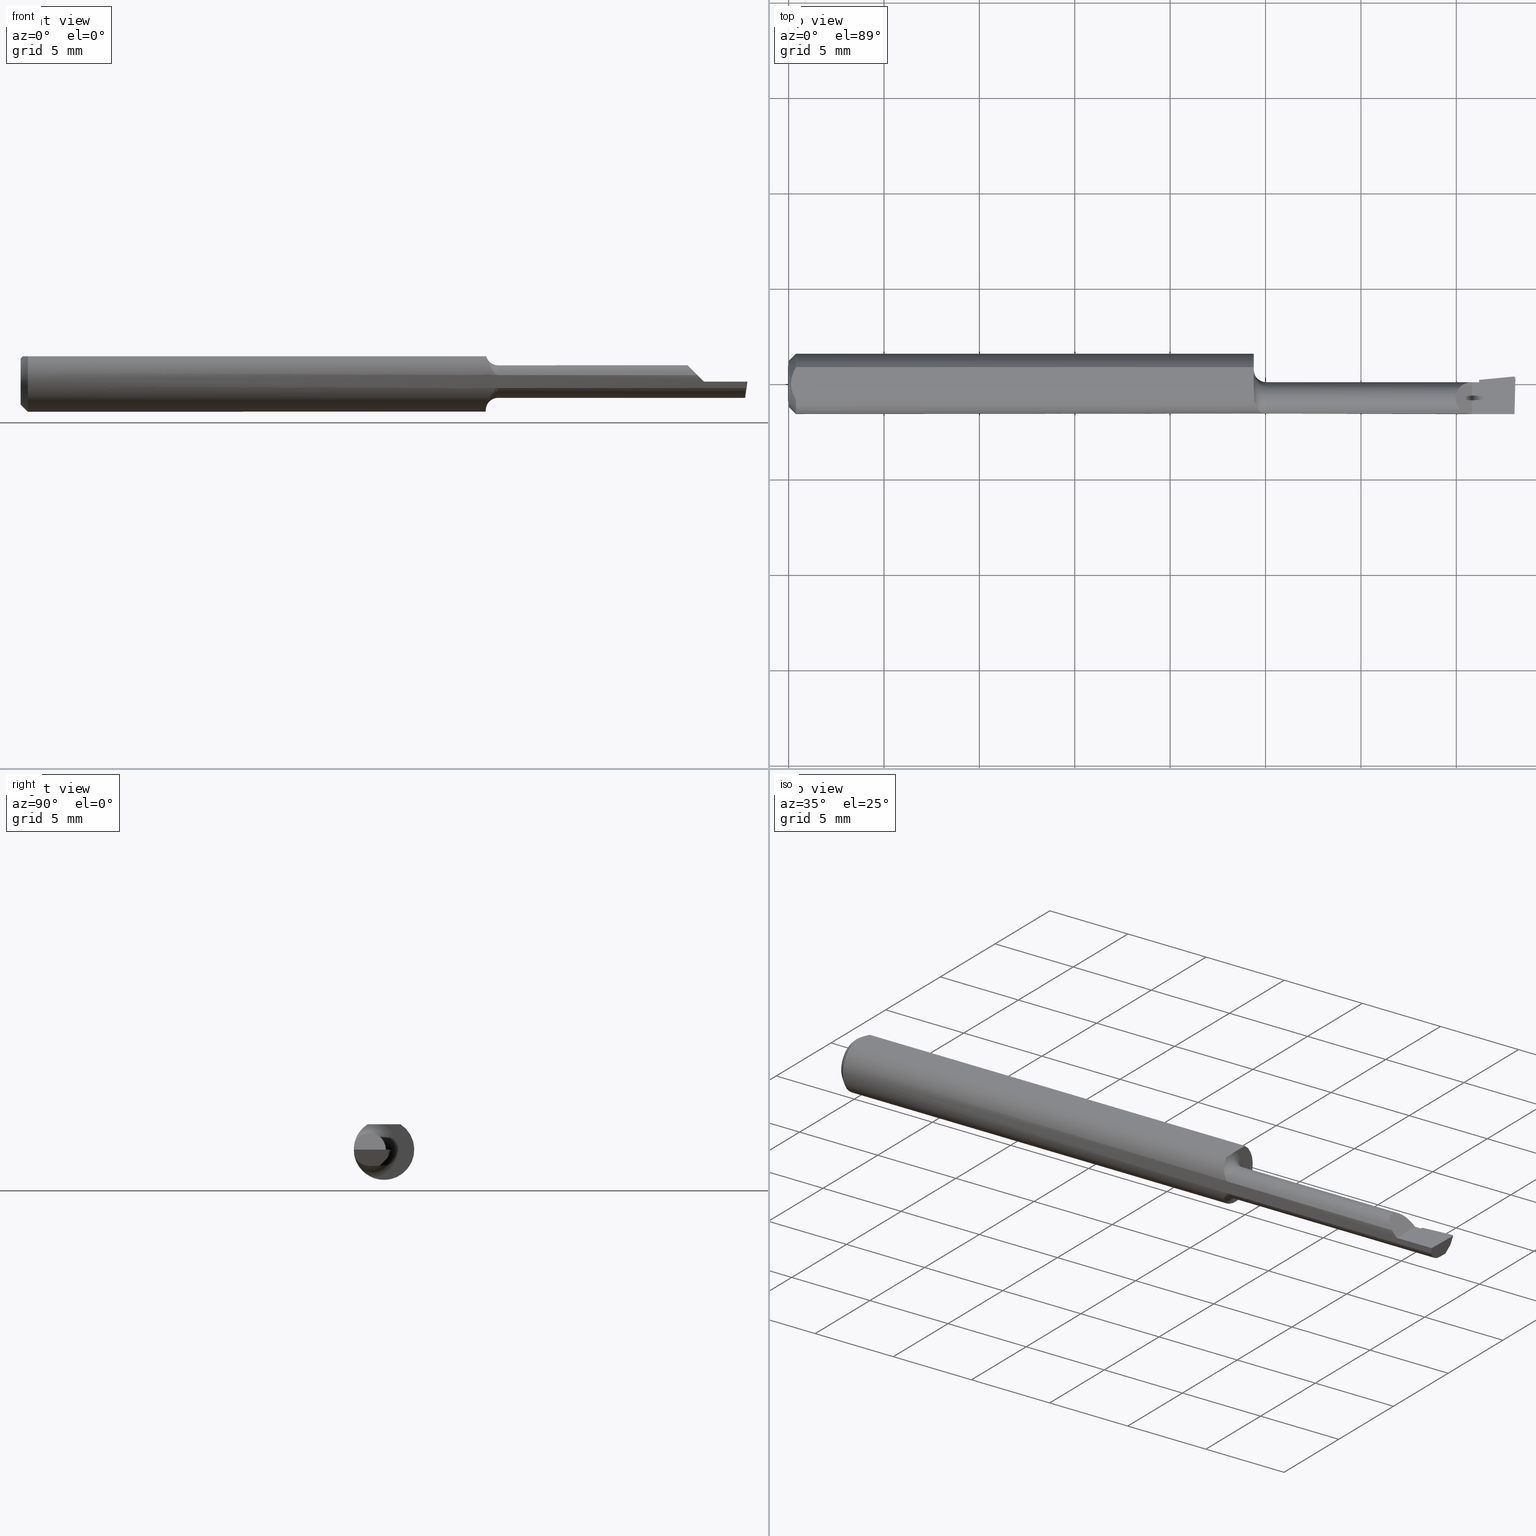
[diagram: canonical four-view strip — front | top / right | iso, engineering-drawing reading convention]
A machine part, canonical four-view strip (front | top / right | iso — engineering-drawing reading convention). The complete STEP part file that produces these views, byte-faithful:
ISO-10303-21;
HEADER;
FILE_DESCRIPTION (( 'STEP AP214' ),
    '1' );
FILE_NAME ('B080500R.STEP',
    '2020-05-08T20:20:43',
    ( '' ),
    ( '' ),
    'SwSTEP 2.0',
    'SolidWorks 2018',
    '' );
FILE_SCHEMA (( 'AUTOMOTIVE_DESIGN' ));
ENDSEC;

DATA;
#1 = CARTESIAN_POINT ( 'NONE',  ( 1.494298760919618330, 0.01108186391304844844, -0.01302709660331435697 ) ) ;
#2 = CARTESIAN_POINT ( 'NONE',  ( 0.9826699145969584048, -0.06082078945086091815, 0.01373977049058531900 ) ) ;
#3 = FILL_AREA_STYLE ('',( #418 ) ) ;
#4 = ORIENTED_EDGE ( 'NONE', *, *, #272, .F. ) ;
#5 = CARTESIAN_POINT ( 'NONE',  ( 1.422586135878207481, -0.004617293032568454622, -0.02209164292227925458 ) ) ;
#6 = ORIENTED_EDGE ( 'NONE', *, *, #409, .F. ) ;
#7 = CARTESIAN_POINT ( 'NONE',  ( 1.497821727327457886, 0.008361614909063648862, -0.01618068703854523213 ) ) ;
#8 = SURFACE_SIDE_STYLE ('',( #544 ) ) ;
#9 = COLOUR_RGB ( '',0.7529411764705882248, 0.7529411764705882248, 0.7529411764705882248 ) ;
#10 = VECTOR ( 'NONE', #125, 39.37007874015748143 ) ;
#11 = EDGE_CURVE ( 'NONE', #474, #414, #535, .T. ) ;
#12 = SURFACE_STYLE_USAGE ( .BOTH. , #8 ) ;
#13 = MECHANICAL_DESIGN_GEOMETRIC_PRESENTATION_REPRESENTATION (  '', ( #595 ), #48 ) ;
#14 = ORIENTED_EDGE ( 'NONE', *, *, #515, .F. ) ;
#15 = AXIS2_PLACEMENT_3D ( 'NONE', #542, #546, #209 ) ;
#16 = CARTESIAN_POINT ( 'NONE',  ( 1.492670969023479621, -0.06014768907414842075, -0.04351009013361929745 ) ) ;
#17 = DIRECTION ( 'NONE',  ( 1.000000000000000000, -2.845674993400274571E-18, 0.0000000000000000000 ) ) ;
#18 = EDGE_LOOP ( 'NONE', ( #152, #243, #354, #323 ) ) ;
#19 = CONICAL_SURFACE ( 'NONE', #15, 0.06235000000000000264, 0.7853981633974594923 ) ;
#20 = ORIENTED_EDGE ( 'NONE', *, *, #557, .T. ) ;
#21 = AXIS2_PLACEMENT_3D ( 'NONE', #623, #573, #229 ) ;
#22 = EDGE_CURVE ( 'NONE', #420, #268, #574, .T. ) ;
#23 = LINE ( 'NONE', #173, #231 ) ;
#24 = DIRECTION ( 'NONE',  ( 0.09165774897393336174, -0.9519021185660613282, 0.2923717047227304411 ) ) ;
#25 = EDGE_CURVE ( 'NONE', #404, #233, #113, .T. ) ;
#26 = CARTESIAN_POINT ( 'NONE',  ( 0.9600000000000001865, -0.003555718954753302706, 0.05235000000000000070 ) ) ;
#27 = ORIENTED_EDGE ( 'NONE', *, *, #329, .F. ) ;
#28 = CARTESIAN_POINT ( 'NONE',  ( 0.0000000000000000000, 0.0000000000000000000, -0.04734999999999965625 ) ) ;
#29 = ORIENTED_EDGE ( 'NONE', *, *, #462, .F. ) ;
#30 = ORIENTED_EDGE ( 'NONE', *, *, #553, .T. ) ;
#31 = VECTOR ( 'NONE', #210, 39.37007874015748143 ) ;
#32 =( NAMED_UNIT ( * ) SI_UNIT ( $, .STERADIAN. ) SOLID_ANGLE_UNIT ( ) );
#33 = CARTESIAN_POINT ( 'NONE',  ( 0.01500000000000000465, 0.0000000000000000000, 0.0000000000000000000 ) ) ;
#34 =( NAMED_UNIT ( * ) PLANE_ANGLE_UNIT ( ) SI_UNIT ( $, .RADIAN. ) );
#35 = ORIENTED_EDGE ( 'NONE', *, *, #204, .T. ) ;
#36 = PLANE ( 'NONE',  #96 ) ;
#37 = CARTESIAN_POINT ( 'NONE',  ( 0.9600000000000002975, -0.008611455327202432314, 0.05235000000000000070 ) ) ;
#38 = CARTESIAN_POINT ( 'NONE',  ( 0.9600000000000001865, 0.1123499999999999915, 0.05234999999999998682 ) ) ;
#39 = ADVANCED_FACE ( 'NONE', ( #224 ), #335, .T. ) ;
#40 =( CONVERSION_BASED_UNIT ( 'INCH', #543 ) LENGTH_UNIT ( ) NAMED_UNIT ( #292 ) );
#41 = FACE_OUTER_BOUND ( 'NONE', #251, .T. ) ;
#42 = DIRECTION ( 'NONE',  ( 0.7071067811865395791, 8.659560562355030233E-17, 0.7071067811865554553 ) ) ;
#43 = VERTEX_POINT ( 'NONE', #596 ) ;
#44 =( LENGTH_UNIT ( ) NAMED_UNIT ( * ) SI_UNIT ( $, .METRE. ) );
#45 = EDGE_CURVE ( 'NONE', #43, #269, #500, .T. ) ;
#46 = ORIENTED_EDGE ( 'NONE', *, *, #59, .T. ) ;
#47 = CARTESIAN_POINT ( 'NONE',  ( 0.9600000000000001865, -0.02246166666666678594, -0.05816352835373341662 ) ) ;
#48 =( GEOMETRIC_REPRESENTATION_CONTEXT ( 3 ) GLOBAL_UNCERTAINTY_ASSIGNED_CONTEXT ( ( #331 ) ) GLOBAL_UNIT_ASSIGNED_CONTEXT ( ( #453, #448, #550 ) ) REPRESENTATION_CONTEXT ( 'NONE', 'WORKASPACE' ) );
#49 = CARTESIAN_POINT ( 'NONE',  ( 0.006057557792978140489, -0.01187252718384441616, 0.05234999999999998682 ) ) ;
#50 = SURFACE_STYLE_USAGE ( .BOTH. , #53 ) ;
#51 = AXIS2_PLACEMENT_3D ( 'NONE', #471, #449, #142 ) ;
#52 = CIRCLE ( 'NONE', #61, 0.06235000000000000264 ) ;
#53 = SURFACE_SIDE_STYLE ('',( #191 ) ) ;
#54 = ORIENTED_EDGE ( 'NONE', *, *, #272, .T. ) ;
#55 = ORIENTED_EDGE ( 'NONE', *, *, #239, .T. ) ;
#56 = VECTOR ( 'NONE', #603, 39.37007874015748854 ) ;
#57 = FILL_AREA_STYLE ('',( #112 ) ) ;
#58 = LINE ( 'NONE', #587, #427 ) ;
#59 = EDGE_CURVE ( 'NONE', #501, #283, #98, .T. ) ;
#60 = DIRECTION ( 'NONE',  ( 0.0000000000000000000, 1.000000000000000000, 2.134256245050205331E-17 ) ) ;
#61 = AXIS2_PLACEMENT_3D ( 'NONE', #340, #569, #232 ) ;
#62 = EDGE_CURVE ( 'NONE', #131, #627, #513, .T. ) ;
#63 = ORIENTED_EDGE ( 'NONE', *, *, #130, .T. ) ;
#64 = DIRECTION ( 'NONE',  ( 0.0000000000000000000, 0.0000000000000000000, 1.000000000000000000 ) ) ;
#65 = ORIENTED_EDGE ( 'NONE', *, *, #622, .F. ) ;
#66 = PLANE ( 'NONE',  #533 ) ;
#67 = FACE_OUTER_BOUND ( 'NONE', #203, .T. ) ;
#68 = FACE_OUTER_BOUND ( 'NONE', #304, .T. ) ;
#69 = VECTOR ( 'NONE', #266, 39.37007874015748143 ) ;
#70 = CARTESIAN_POINT ( 'NONE',  ( 1.493929276084467572, 0.01107257447992733394, -0.01299999999999999767 ) ) ;
#71 = ORIENTED_EDGE ( 'NONE', *, *, #11, .F. ) ;
#72 = CIRCLE ( 'NONE', #227, 0.03364999999999995078 ) ;
#73 = VERTEX_POINT ( 'NONE', #629 ) ;
#74 = FACE_OUTER_BOUND ( 'NONE', #18, .T. ) ;
#75 = CARTESIAN_POINT ( 'NONE',  ( 0.0000000000000000000, 0.03386738844375223462, 0.05234999999999997988 ) ) ;
#76 =( BOUNDED_CURVE ( )  B_SPLINE_CURVE ( 3, ( #562, #464, #405, #182 ),
 .UNSPECIFIED., .F., .F. ) 
 B_SPLINE_CURVE_WITH_KNOTS ( ( 4, 4 ),
 ( 4.712388980384689674, 4.926973479604665584 ),
 .UNSPECIFIED. ) 
 CURVE ( )  GEOMETRIC_REPRESENTATION_ITEM ( )  RATIONAL_B_SPLINE_CURVE ( ( 1.000000000000000000, 0.9961664706887894960, 0.9961664706887894960, 1.000000000000000000 ) ) 
 REPRESENTATION_ITEM ( '' )  );
#77 = ORIENTED_EDGE ( 'NONE', *, *, #99, .F. ) ;
#78 = CARTESIAN_POINT ( 'NONE',  ( 1.497957498117606479, -0.06235000000000001652, 2.590631728435611737E-19 ) ) ;
#79 = EDGE_CURVE ( 'NONE', #325, #283, #470, .T. ) ;
#80 = VECTOR ( 'NONE', #163, 39.37007874015748854 ) ;
#81 = DIRECTION ( 'NONE',  ( 0.9953961983671800740, 0.09584575252021028391, -0.0000000000000000000 ) ) ;
#82 = VERTEX_POINT ( 'NONE', #397 ) ;
#83 = CARTESIAN_POINT ( 'NONE',  ( 0.01500000000000000465, 0.0000000000000000000, -0.06235000000000000264 ) ) ;
#84 = ORIENTED_EDGE ( 'NONE', *, *, #181, .F. ) ;
#85 = CARTESIAN_POINT ( 'NONE',  ( 1.421744639163020851, 0.004121984496277333009, -0.01299999999999999767 ) ) ;
#86 = PRODUCT_CONTEXT ( 'NONE', #482, 'mechanical' ) ;
#87 =( NAMED_UNIT ( * ) PLANE_ANGLE_UNIT ( ) SI_UNIT ( $, .RADIAN. ) );
#88 = CARTESIAN_POINT ( 'NONE',  ( 1.205000000000000071, -0.06092000000000005744, 0.01327690099383115746 ) ) ;
#89 = APPLICATION_CONTEXT ( 'automotive_design' ) ;
#90 = ADVANCED_FACE ( 'NONE', ( #67 ), #19, .T. ) ;
#91 = PLANE ( 'NONE',  #273 ) ;
#92 = CARTESIAN_POINT ( 'NONE',  ( 1.495883579913040773, 0.01524764111161444440, 2.129908061378830802E-18 ) ) ;
#93 = EDGE_CURVE ( 'NONE', #583, #424, #101, .T. ) ;
#94 = VERTEX_POINT ( 'NONE', #160 ) ;
#95 =( CONVERSION_BASED_UNIT ( 'INCH', #315 ) LENGTH_UNIT ( ) NAMED_UNIT ( #180 ) );
#96 = AXIS2_PLACEMENT_3D ( 'NONE', #123, #129, #519 ) ;
#97 = CARTESIAN_POINT ( 'NONE',  ( 0.9850000000000000977, -0.02999999999999999889, 0.0000000000000000000 ) ) ;
#98 =( BOUNDED_CURVE ( )  B_SPLINE_CURVE ( 3, ( #647, #576, #581, #1 ),
 .UNSPECIFIED., .F., .T. ) 
 B_SPLINE_CURVE_WITH_KNOTS ( ( 4, 4 ),
 ( 3.064097098354477300, 3.156599629463099799 ),
 .UNSPECIFIED. ) 
 CURVE ( )  GEOMETRIC_REPRESENTATION_ITEM ( )  RATIONAL_B_SPLINE_CURVE ( ( 1.000000000000000000, 0.9992870672494005291, 0.9992870672494005291, 1.000000000000000000 ) ) 
 REPRESENTATION_ITEM ( '' )  );
#99 = EDGE_CURVE ( 'NONE', #381, #387, #212, .T. ) ;
#100 = CARTESIAN_POINT ( 'NONE',  ( 1.422808130611181499, -0.006922796484203239294, -0.02449010367251407486 ) ) ;
#101 = CIRCLE ( 'NONE', #185, 0.05864999999999993135 ) ;
#102 = CYLINDRICAL_SURFACE ( 'NONE', #21, 0.06235000000000000264 ) ;
#103 = APPLICATION_PROTOCOL_DEFINITION ( 'draft international standard', 'automotive_design', 1998, #89 ) ;
#104 = CARTESIAN_POINT ( 'NONE',  ( 0.0000000000000000000, 0.0000000000000000000, 0.0000000000000000000 ) ) ;
#105 = DIRECTION ( 'NONE',  ( -1.000000000000000000, -0.0000000000000000000, -0.0000000000000000000 ) ) ;
#106 = CARTESIAN_POINT ( 'NONE',  ( 0.9623556892620803715, -0.04203237437577739960, -0.04640179157007803812 ) ) ;
#107 = ORIENTED_EDGE ( 'NONE', *, *, #460, .T. ) ;
#108 = ORIENTED_EDGE ( 'NONE', *, *, #25, .T. ) ;
#109 = CARTESIAN_POINT ( 'NONE',  ( 1.422734132366858306, -0.006115384616088397930, -0.02372927357351927585 ) ) ;
#110 = ORIENTED_EDGE ( 'NONE', *, *, #127, .T. ) ;
#111 = CARTESIAN_POINT ( 'NONE',  ( 0.9744486691799308931, -0.05829317251375062264, -0.02226264029831841185 ) ) ;
#112 = FILL_AREA_STYLE_COLOUR ( '', #9 ) ;
#113 = B_SPLINE_CURVE_WITH_KNOTS ( 'NONE', 3,
 ( #145, #237, #215, #49, #115, #345 ),
 .UNSPECIFIED., .F., .F.,
 ( 4, 2, 4 ),
 ( 0.002133667072902290657, 0.002585433046183636171, 0.003037199019464981685 ),
 .UNSPECIFIED. ) ;
#114 = VECTOR ( 'NONE', #392, 39.37007874015748143 ) ;
#115 = CARTESIAN_POINT ( 'NONE',  ( 0.004999999999998879473, -0.005957634400466955450, 0.05235000000000000070 ) ) ;
#116 = APPLICATION_PROTOCOL_DEFINITION ( 'draft international standard', 'automotive_design', 1998, #482 ) ;
#117 = DIRECTION ( 'NONE',  ( 1.000000000000000000, -2.845674993400274571E-18, 0.0000000000000000000 ) ) ;
#118 = EDGE_CURVE ( 'NONE', #583, #342, #186, .T. ) ;
#119 = ORIENTED_EDGE ( 'NONE', *, *, #434, .F. ) ;
#120 = ORIENTED_EDGE ( 'NONE', *, *, #151, .T. ) ;
#121 = CARTESIAN_POINT ( 'NONE',  ( 1.396723099006168756, -0.06092000000000005744, 0.01327690099383110368 ) ) ;
#122 = COLOUR_RGB ( '',0.7529411764705882248, 0.7529411764705882248, 0.7529411764705882248 ) ;
#123 = CARTESIAN_POINT ( 'NONE',  ( 1.409999999999999920, -0.2500000000000000555, 1.102182119232617911E-17 ) ) ;
#124 = ORIENTED_EDGE ( 'NONE', *, *, #168, .F. ) ;
#125 = DIRECTION ( 'NONE',  ( 1.000000000000000000, 0.0000000000000000000, 0.0000000000000000000 ) ) ;
#126 = ORIENTED_EDGE ( 'NONE', *, *, #223, .F. ) ;
#127 = EDGE_CURVE ( 'NONE', #412, #414, #72, .T. ) ;
#128 = DIRECTION ( 'NONE',  ( -1.000000000000000000, -0.0000000000000000000, -0.0000000000000000000 ) ) ;
#129 = DIRECTION ( 'NONE',  ( -0.7071067811865432429, 0.0000000000000000000, -0.7071067811865517916 ) ) ;
#130 = EDGE_CURVE ( 'NONE', #94, #501, #563, .T. ) ;
#131 = VERTEX_POINT ( 'NONE', #347 ) ;
#132 = DIRECTION ( 'NONE',  ( 2.845674993400274571E-18, 1.000000000000000000, 0.0000000000000000000 ) ) ;
#133 = B_SPLINE_CURVE_WITH_KNOTS ( 'NONE', 3,
 ( #366, #438, #600, #259, #439, #441, #444, #408, #413, #416, #369, #2, #311, #400 ),
 .UNSPECIFIED., .F., .F.,
 ( 4, 2, 2, 2, 2, 2, 4 ),
 ( 3.657393739027581265E-07, 0.0003570510026825786539, 0.0007137362659912544925, 0.001070421529299930060, 0.001248764160954267790, 0.001337935476781436980, 0.001427106792608605736 ),
 .UNSPECIFIED. ) ;
#134 = CARTESIAN_POINT ( 'NONE',  ( 1.496903894257689771, 0.002281272494749553813, -0.02235698263016663509 ) ) ;
#135 = VECTOR ( 'NONE', #560, 39.37007874015748143 ) ;
#136 = LINE ( 'NONE', #437, #633 ) ;
#137 = AXIS2_PLACEMENT_3D ( 'NONE', #286, #447, #450 ) ;
#138 = ORIENTED_EDGE ( 'NONE', *, *, #515, .T. ) ;
#139 = DIRECTION ( 'NONE',  ( -2.845674993400274571E-18, -1.000000000000000000, 0.0000000000000000000 ) ) ;
#140 = ADVANCED_FACE ( 'NONE', ( #313 ), #359, .T. ) ;
#141 = ORIENTED_EDGE ( 'NONE', *, *, #130, .F. ) ;
#142 = DIRECTION ( 'NONE',  ( 0.0000000000000000000, 0.9524855432518751774, -0.3045837978228325693 ) ) ;
#143 = CARTESIAN_POINT ( 'NONE',  ( 0.0000000000000000000, -0.02999999999999999542, 0.0000000000000000000 ) ) ;
#144 = ORIENTED_EDGE ( 'NONE', *, *, #274, .F. ) ;
#145 = CARTESIAN_POINT ( 'NONE',  ( 0.01500000000000185213, -0.03386738844380016850, 0.05235000000000000070 ) ) ;
#146 =( BOUNDED_CURVE ( )  B_SPLINE_CURVE ( 3, ( #174, #296, #399, #78 ),
 .UNSPECIFIED., .F., .T. ) 
 B_SPLINE_CURVE_WITH_KNOTS ( ( 4, 4 ),
 ( 1.146162383294266007, 1.360746882514242806 ),
 .UNSPECIFIED. ) 
 CURVE ( )  GEOMETRIC_REPRESENTATION_ITEM ( )  RATIONAL_B_SPLINE_CURVE ( ( 1.000000000000000000, 0.9961664706887894960, 0.9961664706887894960, 1.000000000000000000 ) ) 
 REPRESENTATION_ITEM ( '' )  );
#147 = LINE ( 'NONE', #193, #499 ) ;
#148 = CARTESIAN_POINT ( 'NONE',  ( 0.9607464907415638189, -0.02375524936241534685, 0.05234999999999997988 ) ) ;
#149 = CARTESIAN_POINT ( 'NONE',  ( 1.425000000000000266, -0.02999999999999999889, -0.03365000000000000629 ) ) ;
#150 = CARTESIAN_POINT ( 'NONE',  ( 1.496007920276510195, 0.01524764111161444786, 2.134256245050205639E-18 ) ) ;
#151 = EDGE_CURVE ( 'NONE', #43, #269, #244, .T. ) ;
#152 = ORIENTED_EDGE ( 'NONE', *, *, #641, .T. ) ;
#153 = CARTESIAN_POINT ( 'NONE',  ( 0.9788394046414949923, -0.06006884725234334921, -0.01674793665629171688 ) ) ;
#154 = ORIENTED_EDGE ( 'NONE', *, *, #520, .F. ) ;
#155 = AXIS2_PLACEMENT_3D ( 'NONE', #353, #64, #207 ) ;
#156 = ORIENTED_EDGE ( 'NONE', *, *, #22, .T. ) ;
#157 = CARTESIAN_POINT ( 'NONE',  ( 1.425000000000000266, -0.01559826430798810955, -0.03365000000000000629 ) ) ;
#158 = CARTESIAN_POINT ( 'NONE',  ( 1.421744639163020851, 0.004121984496277333009, -0.01299999999999999767 ) ) ;
#159 = FACE_OUTER_BOUND ( 'NONE', #612, .T. ) ;
#160 = CARTESIAN_POINT ( 'NONE',  ( 1.495634880358096996, 0.01522968678441272497, 4.859216828160406885E-19 ) ) ;
#161 = CARTESIAN_POINT ( 'NONE',  ( 1.495759144559530851, 0.01524165206609384010, 2.145146997116501947E-18 ) ) ;
#162 = DIRECTION ( 'NONE',  ( 0.0000000000000000000, -0.6963153109074925462, -0.7177360153954948085 ) ) ;
#163 = DIRECTION ( 'NONE',  ( -0.02617694830794628155, -0.9996573249755552615, -2.144436937150364733E-17 ) ) ;
#164 = DIRECTION ( 'NONE',  ( -1.000000000000000000, -0.0000000000000000000, -0.0000000000000000000 ) ) ;
#165 = PRESENTATION_STYLE_ASSIGNMENT (( #50 ) ) ;
#166 = CARTESIAN_POINT ( 'NONE',  ( 1.495634880358096996, 0.01522968678441272497, 4.859216828160406885E-19 ) ) ;
#167 = VECTOR ( 'NONE', #105, 39.37007874015748143 ) ;
#168 = EDGE_CURVE ( 'NONE', #412, #601, #324, .T. ) ;
#169 = EDGE_CURVE ( 'NONE', #591, #501, #421, .T. ) ;
#170 = MANIFOLD_SOLID_BREP ( '51D835A9-7716-4a5b-ACE9-41237C13A109-GAAFaceID15', #317 ) ;
#171 = ORIENTED_EDGE ( 'NONE', *, *, #300, .F. ) ;
#172 = DIRECTION ( 'NONE',  ( 0.0000000000000000000, 0.0000000000000000000, -1.000000000000000000 ) ) ;
#173 = CARTESIAN_POINT ( 'NONE',  ( 1.492000491577410326, -0.008106950511527389810, -0.06006359978098790853 ) ) ;
#174 = CARTESIAN_POINT ( 'NONE',  ( 1.496364186706980792, -0.06092000000000005744, -0.01327690099383115746 ) ) ;
#175 = ORIENTED_EDGE ( 'NONE', *, *, #62, .F. ) ;
#176 = CARTESIAN_POINT ( 'NONE',  ( 1.496364186706980792, -0.06092000000000005744, -0.01327690099383115746 ) ) ;
#177 = ORIENTED_EDGE ( 'NONE', *, *, #372, .T. ) ;
#178 = EDGE_LOOP ( 'NONE', ( #588, #120 ) ) ;
#179 = ORIENTED_EDGE ( 'NONE', *, *, #334, .F. ) ;
#180 = DIMENSIONAL_EXPONENTS ( 1.000000000000000000, 0.0000000000000000000, 0.0000000000000000000, 0.0000000000000000000, 0.0000000000000000000, 0.0000000000000000000, 0.0000000000000000000 ) ;
#181 = EDGE_CURVE ( 'NONE', #325, #94, #445, .T. ) ;
#182 = CARTESIAN_POINT ( 'NONE',  ( 1.396723099006168756, -0.06092000000000005744, 0.01327690099383110368 ) ) ;
#183 = PRODUCT_DEFINITION ( 'UNKNOWN', '', #225, #472 ) ;
#184 = ADVANCED_FACE ( 'NONE', ( #552 ), #198, .F. ) ;
#185 = AXIS2_PLACEMENT_3D ( 'NONE', #644, #358, #265 ) ;
#186 = B_SPLINE_CURVE_WITH_KNOTS ( 'NONE', 3,
 ( #26, #37, #493, #148, #247, #205 ),
 .UNSPECIFIED., .F., .F.,
 ( 4, 2, 4 ),
 ( 2.951825381264387685E-05, 0.0004145759864934283213, 0.0007996337191742129182 ),
 .UNSPECIFIED. ) ;
#187 = CARTESIAN_POINT ( 'NONE',  ( 1.423528013792283220, -0.006115055335901219483, -0.02372896329039452662 ) ) ;
#188 = EDGE_LOOP ( 'NONE', ( #487, #171, #201, #620, #234 ) ) ;
#189 = CARTESIAN_POINT ( 'NONE',  ( 0.9760504801086954396, -0.05911543623058087421, -0.01994584841871079733 ) ) ;
#190 = CARTESIAN_POINT ( 'NONE',  ( 1.500000000000000222, -0.02999999999999999889, -0.03365000000000000629 ) ) ;
#191 = SURFACE_STYLE_FILL_AREA ( #57 ) ;
#192 = VERTEX_POINT ( 'NONE', #157 ) ;
#193 = CARTESIAN_POINT ( 'NONE',  ( 1.425000000000000266, -0.02999999999999999889, -0.03365000000000000629 ) ) ;
#194 = CARTESIAN_POINT ( 'NONE',  ( 0.9604591950614119744, -0.03294655339399241850, -0.05323881456264100559 ) ) ;
#195 = ADVANCED_FACE ( 'NONE', ( #383 ), #245, .F. ) ;
#196 = LINE ( 'NONE', #606, #69 ) ;
#197 = DIRECTION ( 'NONE',  ( -0.1240019227990028228, -0.3022330132596681151, -0.9451342385281211733 ) ) ;
#198 = PLANE ( 'NONE',  #580 ) ;
#199 = EDGE_CURVE ( 'NONE', #192, #591, #196, .T. ) ;
#200 = DIRECTION ( 'NONE',  ( 0.06894566448119619773, -0.7160281025913035613, 0.6946583704589934793 ) ) ;
#201 = ORIENTED_EDGE ( 'NONE', *, *, #372, .F. ) ;
#202 = ORIENTED_EDGE ( 'NONE', *, *, #481, .F. ) ;
#203 = EDGE_LOOP ( 'NONE', ( #179, #55, #54, #549, #496 ) ) ;
#204 = EDGE_CURVE ( 'NONE', #387, #325, #429, .T. ) ;
#205 = CARTESIAN_POINT ( 'NONE',  ( 0.9607701187518842278, -0.03386738844373782947, 0.05235000000000000070 ) ) ;
#206 = CARTESIAN_POINT ( 'NONE',  ( 1.500000000000000222, 0.1123499999999999915, 0.05234999999999998682 ) ) ;
#207 = DIRECTION ( 'NONE',  ( 1.000000000000000000, 0.0000000000000000000, 0.0000000000000000000 ) ) ;
#208 = PRODUCT_DEFINITION_SHAPE ( 'NONE', 'NONE',  #183 ) ;
#209 = DIRECTION ( 'NONE',  ( 0.0000000000000000000, 0.0000000000000000000, -1.000000000000000000 ) ) ;
#210 = DIRECTION ( 'NONE',  ( -0.1053106618242664883, -0.6976485211320150315, -0.7086580314005108683 ) ) ;
#211 = ORIENTED_EDGE ( 'NONE', *, *, #409, .T. ) ;
#212 = LINE ( 'NONE', #364, #56 ) ;
#213 = ORIENTED_EDGE ( 'NONE', *, *, #79, .T. ) ;
#214 = DIRECTION ( 'NONE',  ( 0.06894566448119619773, -0.7160281025913035613, 0.6946583704589934793 ) ) ;
#215 = CARTESIAN_POINT ( 'NONE',  ( 0.009678036133109307534, -0.02325481837211496039, 0.05235000000000000070 ) ) ;
#216 = DIRECTION ( 'NONE',  ( 0.0000000000000000000, -0.6963153109074925462, -0.7177360153954948085 ) ) ;
#217 = CARTESIAN_POINT ( 'NONE',  ( 0.9821601379188166225, -0.06077026469959424110, -0.01397522694752828185 ) ) ;
#218 = ORIENTED_EDGE ( 'NONE', *, *, #520, .T. ) ;
#219 = CARTESIAN_POINT ( 'NONE',  ( 1.494591462065969711, 0.007985329624770099582, -0.009577813142602378815 ) ) ;
#220 = UNCERTAINTY_MEASURE_WITH_UNIT (LENGTH_MEASURE( 1.000000000000000082E-05 ), #40, 'distance_accuracy_value', 'NONE');
#221 = CARTESIAN_POINT ( 'NONE',  ( 0.9798286866658773020, -0.06034170405075480609, -0.01572293840682431956 ) ) ;
#222 = DIRECTION ( 'NONE',  ( -1.214679925209547374E-34, -2.134256245050205023E-17, 1.000000000000000000 ) ) ;
#223 = EDGE_CURVE ( 'NONE', #381, #380, #320, .T. ) ;
#224 = FACE_OUTER_BOUND ( 'NONE', #630, .T. ) ;
#225 = PRODUCT_DEFINITION_FORMATION_WITH_SPECIFIED_SOURCE ( 'ANY', '', #650, .NOT_KNOWN. ) ;
#226 = CARTESIAN_POINT ( 'NONE',  ( 0.9850000000000000977, -0.06092000000000009907, -0.01327690099383098052 ) ) ;
#227 = AXIS2_PLACEMENT_3D ( 'NONE', #97, #309, #346 ) ;
#228 = ORIENTED_EDGE ( 'NONE', *, *, #460, .F. ) ;
#229 = DIRECTION ( 'NONE',  ( 0.0000000000000000000, 0.0000000000000000000, 1.000000000000000000 ) ) ;
#230 = CARTESIAN_POINT ( 'NONE',  ( 0.9600000000000001865, -0.02246166666666678594, -0.05816352835373341662 ) ) ;
#231 = VECTOR ( 'NONE', #511, 39.37007874015748854 ) ;
#232 = DIRECTION ( 'NONE',  ( 0.0000000000000000000, 1.000000000000000000, 0.0000000000000000000 ) ) ;
#233 = VERTEX_POINT ( 'NONE', #435 ) ;
#234 = ORIENTED_EDGE ( 'NONE', *, *, #431, .F. ) ;
#235 = EDGE_CURVE ( 'NONE', #342, #412, #133, .T. ) ;
#236 = ORIENTED_EDGE ( 'NONE', *, *, #127, .F. ) ;
#237 = CARTESIAN_POINT ( 'NONE',  ( 0.01216137397042175820, -0.02864146636719541034, 0.05235000000000000070 ) ) ;
#238 = ADVANCED_FACE ( 'NONE', ( #277 ), #446, .F. ) ;
#239 = EDGE_CURVE ( 'NONE', #268, #233, #536, .T. ) ;
#240 = CYLINDRICAL_SURFACE ( 'NONE', #419, 0.03364999999999997160 ) ;
#241 = DIRECTION ( 'NONE',  ( 0.0000000000000000000, 0.0000000000000000000, 1.000000000000000000 ) ) ;
#242 = ORIENTED_EDGE ( 'NONE', *, *, #557, .F. ) ;
#243 = ORIENTED_EDGE ( 'NONE', *, *, #62, .T. ) ;
#244 = B_SPLINE_CURVE_WITH_KNOTS ( 'NONE', 3,
 ( #5, #423, #109, #100 ),
 .UNSPECIFIED., .F., .F.,
 ( 4, 4 ),
 ( 0.0000000000000000000, 1.000000000000000000 ),
 .UNSPECIFIED. ) ;
#245 = PLANE ( 'NONE',  #651 ) ;
#246 = VERTEX_POINT ( 'NONE', #307 ) ;
#247 = CARTESIAN_POINT ( 'NONE',  ( 0.9608648707886662255, -0.02880649294741972899, 0.05234999999999998682 ) ) ;
#248 = AXIS2_PLACEMENT_3D ( 'NONE', #398, #164, #529 ) ;
#249 = DIRECTION ( 'NONE',  ( -0.9922060308645399562, 0.02598182930476573491, 0.1218693434051959790 ) ) ;
#250 = CARTESIAN_POINT ( 'NONE',  ( 1.425000000000000266, 0.01742832138518450244, 0.0000000000000000000 ) ) ;
#251 = EDGE_LOOP ( 'NONE', ( #138, #488, #614 ) ) ;
#252 = CARTESIAN_POINT ( 'NONE',  ( 0.0000000000000000000, -0.03386738844375222768, 0.05234999999999997988 ) ) ;
#253 = CARTESIAN_POINT ( 'NONE',  ( 1.497937029019752231, -0.008575227205320950716, -0.03365000000000000629 ) ) ;
#254 = CARTESIAN_POINT ( 'NONE',  ( 1.363008094618844313, 0.003649999999999966639, 0.04699190538115514959 ) ) ;
#255 = ORIENTED_EDGE ( 'NONE', *, *, #481, .T. ) ;
#256 = DIRECTION ( 'NONE',  ( 0.0000000000000000000, -7.598598113218357399E-17, -1.000000000000000000 ) ) ;
#257 = EDGE_CURVE ( 'NONE', #540, #583, #643, .T. ) ;
#258 = PRODUCT_RELATED_PRODUCT_CATEGORY ( 'part', '', ( #650 ) ) ;
#259 = CARTESIAN_POINT ( 'NONE',  ( 0.9646639545706103824, -0.04772651244230446260, 0.04037711979630429632 ) ) ;
#260 = ORIENTED_EDGE ( 'NONE', *, *, #151, .F. ) ;
#261 = EDGE_LOOP ( 'NONE', ( #386, #35, #278, #466, #568, #29, #242, #126 ) ) ;
#262 = DIRECTION ( 'NONE',  ( 0.0000000000000000000, -1.000000000000000000, 0.0000000000000000000 ) ) ;
#263 = LINE ( 'NONE', #134, #31 ) ;
#264 = LINE ( 'NONE', #532, #463 ) ;
#265 = DIRECTION ( 'NONE',  ( 0.0000000000000000000, -1.000000000000000000, 0.0000000000000000000 ) ) ;
#266 = DIRECTION ( 'NONE',  ( 1.981487067771189051E-18, 0.6963153109074925462, 0.7177360153954948085 ) ) ;
#267 = DIRECTION ( 'NONE',  ( 1.000000000000000000, 0.0000000000000000000, 0.0000000000000000000 ) ) ;
#268 = VERTEX_POINT ( 'NONE', #639 ) ;
#269 = VERTEX_POINT ( 'NONE', #489 ) ;
#270 = CARTESIAN_POINT ( 'NONE',  ( 1.499880855614027064, 0.01110005946549043158, 2.701813490482481830E-20 ) ) ;
#271 =( BOUNDED_CURVE ( )  B_SPLINE_CURVE ( 3, ( #176, #566, #512, #333 ),
 .UNSPECIFIED., .F., .T. ) 
 B_SPLINE_CURVE_WITH_KNOTS ( ( 4, 4 ),
 ( 5.328025986651551804, 6.493234751460239096 ),
 .UNSPECIFIED. ) 
 CURVE ( )  GEOMETRIC_REPRESENTATION_ITEM ( )  RATIONAL_B_SPLINE_CURVE ( ( 1.000000000000000000, 0.8900217005663142444, 0.8900217005663142444, 1.000000000000000000 ) ) 
 REPRESENTATION_ITEM ( '' )  );
#272 = EDGE_CURVE ( 'NONE', #233, #246, #598, .T. ) ;
#273 = AXIS2_PLACEMENT_3D ( 'NONE', #402, #24, #321 ) ;
#274 = EDGE_CURVE ( 'NONE', #283, #475, #388, .T. ) ;
#275 = ORIENTED_EDGE ( 'NONE', *, *, #45, .T. ) ;
#276 = ORIENTED_EDGE ( 'NONE', *, *, #641, .F. ) ;
#277 = FACE_OUTER_BOUND ( 'NONE', #261, .T. ) ;
#278 = ORIENTED_EDGE ( 'NONE', *, *, #181, .T. ) ;
#279 = AXIS2_PLACEMENT_3D ( 'NONE', #303, #117, #132 ) ;
#280 = VERTEX_POINT ( 'NONE', #149 ) ;
#281 = ADVANCED_BREP_SHAPE_REPRESENTATION ( 'B080500R', ( #170, #155 ), #517 ) ;
#282 = CARTESIAN_POINT ( 'NONE',  ( 0.01500000000000185213, -0.03386738844380016850, 0.05235000000000000070 ) ) ;
#283 = VERTEX_POINT ( 'NONE', #538 ) ;
#284 = VECTOR ( 'NONE', #81, 39.37007874015748854 ) ;
#285 = VERTEX_POINT ( 'NONE', #316 ) ;
#286 = CARTESIAN_POINT ( 'NONE',  ( 1.500000000000000222, -0.2500000000000000555, 0.0000000000000000000 ) ) ;
#287 = STYLED_ITEM ( 'NONE', ( #165 ), #170 ) ;
#288 = CIRCLE ( 'NONE', #302, 0.06235000000000000264 ) ;
#289 = CARTESIAN_POINT ( 'NONE',  ( 0.006064493299689842180, 0.01189382783781397189, 0.05235000000000000070 ) ) ;
#290 = CARTESIAN_POINT ( 'NONE',  ( 1.498346190944516598, 0.01524764111161451378, 1.828325189654670006E-18 ) ) ;
#291 = CARTESIAN_POINT ( 'NONE',  ( 1.409999999999999920, 0.003649999999999905057, 1.102182119232617911E-17 ) ) ;
#292 = DIMENSIONAL_EXPONENTS ( 1.000000000000000000, 0.0000000000000000000, 0.0000000000000000000, 0.0000000000000000000, 0.0000000000000000000, 0.0000000000000000000, 0.0000000000000000000 ) ;
#293 = DIRECTION ( 'NONE',  ( 2.845674993400274571E-18, 1.000000000000000000, -3.484946772081307763E-34 ) ) ;
#294 = CARTESIAN_POINT ( 'NONE',  ( 1.496007920276510195, 0.01524764111161444786, 2.134256245050205639E-18 ) ) ;
#295 = ORIENTED_EDGE ( 'NONE', *, *, #204, .F. ) ;
#296 = CARTESIAN_POINT ( 'NONE',  ( 1.496875516891821967, -0.06187149898566947359, -0.008911023878839218967 ) ) ;
#297 = ADVANCED_FACE ( 'NONE', ( #41 ), #586, .T. ) ;
#298 = CARTESIAN_POINT ( 'NONE',  ( 0.004999999999999268051, 0.005945714695019511074, 0.05235000000000000070 ) ) ;
#299 = CARTESIAN_POINT ( 'NONE',  ( 0.9850000000000000977, -0.06092000000000009907, -0.01327690099383098052 ) ) ;
#300 = EDGE_CURVE ( 'NONE', #280, #192, #147, .T. ) ;
#301 = DIRECTION ( 'NONE',  ( 0.0000000000000000000, 0.9524855432518751774, -0.3045837978228325693 ) ) ;
#302 = AXIS2_PLACEMENT_3D ( 'NONE', #375, #371, #361 ) ;
#303 = CARTESIAN_POINT ( 'NONE',  ( 0.9600000000000001865, 0.02864999999999994634, 0.0000000000000000000 ) ) ;
#304 = EDGE_LOOP ( 'NONE', ( #156, #368 ) ) ;
#305 = EDGE_CURVE ( 'NONE', #94, #82, #58, .T. ) ;
#306 = ORIENTED_EDGE ( 'NONE', *, *, #22, .F. ) ;
#307 = CARTESIAN_POINT ( 'NONE',  ( 0.01500000000000000465, 0.03386738844375223462, 0.05234999999999997988 ) ) ;
#308 = LINE ( 'NONE', #504, #608 ) ;
#309 = DIRECTION ( 'NONE',  ( -1.000000000000000000, 2.845674993400274571E-18, -0.0000000000000000000 ) ) ;
#310 = ORIENTED_EDGE ( 'NONE', *, *, #274, .T. ) ;
#311 = CARTESIAN_POINT ( 'NONE',  ( 0.9838008948468816017, -0.06092000000060113218, 0.01327690099107449277 ) ) ;
#312 = AXIS2_PLACEMENT_3D ( 'NONE', #548, #267, #484 ) ;
#313 = FACE_OUTER_BOUND ( 'NONE', #188, .T. ) ;
#314 =( BOUNDED_CURVE ( )  B_SPLINE_CURVE ( 3, ( #121, #626, #254, #291 ),
 .UNSPECIFIED., .F., .T. ) 
 B_SPLINE_CURVE_WITH_KNOTS ( ( 4, 4 ),
 ( 5.117976542370897164, 7.853981633974482790 ),
 .UNSPECIFIED. ) 
 CURVE ( )  GEOMETRIC_REPRESENTATION_ITEM ( )  RATIONAL_B_SPLINE_CURVE ( ( 1.000000000000000000, 0.4676044288551151062, 0.4676044288551151062, 1.000000000000000000 ) ) 
 REPRESENTATION_ITEM ( '' )  );
#315 = LENGTH_MEASURE_WITH_UNIT ( LENGTH_MEASURE( 0.02539999999999999897 ), #539 );
#316 = CARTESIAN_POINT ( 'NONE',  ( 1.409999999999999920, 0.003649999999999905057, 1.102182119232617911E-17 ) ) ;
#317 = CLOSED_SHELL ( 'NONE', ( #628, #90, #477, #195, #238, #507, #584, #339, #440, #297, #140, #350, #385, #634, #534, #184, #403, #39 ) ) ;
#318 = ORIENTED_EDGE ( 'NONE', *, *, #118, .F. ) ;
#319 = ORIENTED_EDGE ( 'NONE', *, *, #486, .T. ) ;
#320 = LINE ( 'NONE', #360, #167 ) ;
#321 = DIRECTION ( 'NONE',  ( 0.0000000000000000000, -0.2936076258024061802, -0.9559260233253795702 ) ) ;
#322 = AXIS2_PLACEMENT_3D ( 'NONE', #250, #577, #491 ) ;
#323 = ORIENTED_EDGE ( 'NONE', *, *, #300, .T. ) ;
#324 = LINE ( 'NONE', #88, #582 ) ;
#325 = VERTEX_POINT ( 'NONE', #609 ) ;
#326 = DIRECTION ( 'NONE',  ( -1.000000000000000000, 2.845674993400274571E-18, -0.0000000000000000000 ) ) ;
#327 = VECTOR ( 'NONE', #479, 39.37007874015748143 ) ;
#328 = VECTOR ( 'NONE', #522, 39.37007874015748143 ) ;
#329 = EDGE_CURVE ( 'NONE', #342, #404, #443, .T. ) ;
#330 = EDGE_LOOP ( 'NONE', ( #318, #455, #228, #4, #376, #27 ) ) ;
#331 = UNCERTAINTY_MEASURE_WITH_UNIT (LENGTH_MEASURE( 1.000000000000000082E-05 ), #453, 'distance_accuracy_value', 'NONE');
#332 = AXIS2_PLACEMENT_3D ( 'NONE', #337, #585, #172 ) ;
#333 = CARTESIAN_POINT ( 'NONE',  ( 1.494671495890090407, -0.02999999999999999889, -0.03365000000000000629 ) ) ;
#334 = EDGE_CURVE ( 'NONE', #268, #420, #525, .T. ) ;
#335 = CYLINDRICAL_SURFACE ( 'NONE', #51, 0.004000000000000000083 ) ;
#336 = VECTOR ( 'NONE', #293, 39.37007874015748143 ) ;
#337 = CARTESIAN_POINT ( 'NONE',  ( 0.0000000000000000000, 0.0000000000000000000, 0.0000000000000000000 ) ) ;
#338 = FACE_OUTER_BOUND ( 'NONE', #503, .T. ) ;
#339 = ADVANCED_FACE ( 'NONE', ( #607 ), #357, .T. ) ;
#340 = CARTESIAN_POINT ( 'NONE',  ( 0.9600000000000001865, 0.0000000000000000000, 0.0000000000000000000 ) ) ;
#341 = CARTESIAN_POINT ( 'NONE',  ( 0.009669996313769784607, 0.02323004575534281385, 0.05234999999999998682 ) ) ;
#342 = VERTEX_POINT ( 'NONE', #632 ) ;
#343 = CARTESIAN_POINT ( 'NONE',  ( 0.01500000000000000465, 0.0000000000000000000, -0.06235000000000000264 ) ) ;
#344 = ORIENTED_EDGE ( 'NONE', *, *, #168, .T. ) ;
#345 = CARTESIAN_POINT ( 'NONE',  ( 0.004999999999989931769, 7.898418181085889318E-16, 0.05235000000000000070 ) ) ;
#346 = DIRECTION ( 'NONE',  ( 0.0000000000000000000, -1.000000000000000000, 0.0000000000000000000 ) ) ;
#347 = CARTESIAN_POINT ( 'NONE',  ( 1.495225686884720906, -0.008836299758840976751, -0.03365000000000000629 ) ) ;
#348 = LINE ( 'NONE', #75, #10 ) ;
#349 = CARTESIAN_POINT ( 'NONE',  ( 0.9700645789173278910, -0.05535262368619134343, -0.02912723828542086030 ) ) ;
#350 = ADVANCED_FACE ( 'NONE', ( #159, #451 ), #240, .T. ) ;
#351 = PLANE ( 'NONE',  #332 ) ;
#352 = CARTESIAN_POINT ( 'NONE',  ( 1.496592477637190610, 0.01097327144618721016, -0.01336668378927334186 ) ) ;
#353 = CARTESIAN_POINT ( 'NONE',  ( 0.0000000000000000000, 0.0000000000000000000, 0.0000000000000000000 ) ) ;
#354 = ORIENTED_EDGE ( 'NONE', *, *, #593, .T. ) ;
#355 = ORIENTED_EDGE ( 'NONE', *, *, #611, .F. ) ;
#356 = CARTESIAN_POINT ( 'NONE',  ( 0.004999999999989931769, 7.898418181085889318E-16, 0.05235000000000000070 ) ) ;
#357 = CONICAL_SURFACE ( 'NONE', #312, 0.06235000000000000264, 0.7853981633974594923 ) ;
#358 = DIRECTION ( 'NONE',  ( -1.000000000000000000, 2.845674993400274571E-18, -0.0000000000000000000 ) ) ;
#359 = PLANE ( 'NONE',  #322 ) ;
#360 = CARTESIAN_POINT ( 'NONE',  ( 2.249639673992780117E-32, -0.06234999999999999570, 1.836970198721026976E-16 ) ) ;
#361 = DIRECTION ( 'NONE',  ( 0.0000000000000000000, 0.0000000000000000000, 1.000000000000000000 ) ) ;
#362 = PRESENTATION_LAYER_ASSIGNMENT (  '', '', ( #287 ) ) ;
#363 = ORIENTED_EDGE ( 'NONE', *, *, #239, .F. ) ;
#364 = CARTESIAN_POINT ( 'NONE',  ( 1.493048476612020226, -0.2498179679537755049, 8.513160866287434901E-19 ) ) ;
#365 = LINE ( 'NONE', #524, #135 ) ;
#366 = CARTESIAN_POINT ( 'NONE',  ( 0.9607701187518842278, -0.03386738844373782947, 0.05235000000000000070 ) ) ;
#367 = SHAPE_DEFINITION_REPRESENTATION ( #208, #281 ) ;
#368 = ORIENTED_EDGE ( 'NONE', *, *, #334, .T. ) ;
#369 = CARTESIAN_POINT ( 'NONE',  ( 0.9806804763874463760, -0.06051938329563268104, 0.01501179429902396202 ) ) ;
#370 = ORIENTED_EDGE ( 'NONE', *, *, #169, .F. ) ;
#371 = DIRECTION ( 'NONE',  ( -1.000000000000000000, -0.0000000000000000000, -0.0000000000000000000 ) ) ;
#372 = EDGE_CURVE ( 'NONE', #73, #280, #559, .T. ) ;
#373 = LINE ( 'NONE', #253, #613 ) ;
#374 = EDGE_CURVE ( 'NONE', #475, #131, #263, .T. ) ;
#375 = CARTESIAN_POINT ( 'NONE',  ( 0.01500000000000000465, 0.0000000000000000000, 0.0000000000000000000 ) ) ;
#376 = ORIENTED_EDGE ( 'NONE', *, *, #25, .F. ) ;
#377 = ORIENTED_EDGE ( 'NONE', *, *, #374, .F. ) ;
#378 = ORIENTED_EDGE ( 'NONE', *, *, #11, .T. ) ;
#379 = CARTESIAN_POINT ( 'NONE',  ( 0.9850000000000000977, -0.02999999999999999542, 0.0000000000000000000 ) ) ;
#380 = VERTEX_POINT ( 'NONE', #579 ) ;
#381 = VERTEX_POINT ( 'NONE', #456 ) ;
#382 = CARTESIAN_POINT ( 'NONE',  ( 0.9850000000000000977, -0.06092000000000009213, 0.01327690099383100134 ) ) ;
#383 = FACE_OUTER_BOUND ( 'NONE', #330, .T. ) ;
#384 = AXIS2_PLACEMENT_3D ( 'NONE', #454, #390, #262 ) ;
#385 = ADVANCED_FACE ( 'NONE', ( #74 ), #528, .F. ) ;
#386 = ORIENTED_EDGE ( 'NONE', *, *, #99, .T. ) ;
#387 = VERTEX_POINT ( 'NONE', #621 ) ;
#388 =( BOUNDED_CURVE ( )  B_SPLINE_CURVE ( 3, ( #495, #352, #7, #436 ),
 .UNSPECIFIED., .F., .T. ) 
 B_SPLINE_CURVE_WITH_KNOTS ( ( 4, 4 ),
 ( 3.156599629463099799, 4.715023529952381942 ),
 .UNSPECIFIED. ) 
 CURVE ( )  GEOMETRIC_REPRESENTATION_ITEM ( )  RATIONAL_B_SPLINE_CURVE ( ( 1.000000000000000000, 0.8076450242550353709, 0.8076450242550353709, 1.000000000000000000 ) ) 
 REPRESENTATION_ITEM ( '' )  );
#389 = CARTESIAN_POINT ( 'NONE',  ( 1.425000000000000266, -0.2500000000000000555, 9.184850993605122553E-18 ) ) ;
#390 = DIRECTION ( 'NONE',  ( -1.000000000000000000, 2.845674993400274571E-18, -0.0000000000000000000 ) ) ;
#391 = ORIENTED_EDGE ( 'NONE', *, *, #79, .F. ) ;
#392 = DIRECTION ( 'NONE',  ( 0.7071067811865395791, 0.0000000000000000000, -0.7071067811865554553 ) ) ;
#393 = EDGE_LOOP ( 'NONE', ( #355, #154, #20 ) ) ;
#394 = DIRECTION ( 'NONE',  ( -0.9953961983671800740, -0.09584575252021024228, 1.242092384877204037E-16 ) ) ;
#395 = ORIENTED_EDGE ( 'NONE', *, *, #59, .F. ) ;
#396 = MECHANICAL_DESIGN_GEOMETRIC_PRESENTATION_REPRESENTATION (  '', ( #287 ), #426 ) ;
#397 = CARTESIAN_POINT ( 'NONE',  ( 1.425000000000000266, 0.008428321385185622017, 1.835460370743176819E-16 ) ) ;
#398 = CARTESIAN_POINT ( 'NONE',  ( 0.0000000000000000000, 0.0000000000000000000, 0.0000000000000000000 ) ) ;
#399 = CARTESIAN_POINT ( 'NONE',  ( 1.497408664532471789, -0.06235000000000000958, -0.004468359128689263979 ) ) ;
#400 = CARTESIAN_POINT ( 'NONE',  ( 0.9850000000000000977, -0.06092000000000009213, 0.01327690099383100134 ) ) ;
#401 = EDGE_LOOP ( 'NONE', ( #84, #213, #395, #141 ) ) ;
#402 = CARTESIAN_POINT ( 'NONE',  ( 1.421363700328992952, 0.008078185550903291615, 0.0000000000000000000 ) ) ;
#403 = ADVANCED_FACE ( 'NONE', ( #458 ), #66, .F. ) ;
#404 = VERTEX_POINT ( 'NONE', #282 ) ;
#405 = CARTESIAN_POINT ( 'NONE',  ( 1.401088976121160901, -0.06187149898566947359, 0.008911023878839133966 ) ) ;
#406 = CARTESIAN_POINT ( 'NONE',  ( 0.9676519216434287252, -0.05268295501176721574, -0.03378546887498616591 ) ) ;
#407 = CARTESIAN_POINT ( 'NONE',  ( 1.422808130611181499, -0.006922796484203239294, -0.02449010367251407486 ) ) ;
#408 = CARTESIAN_POINT ( 'NONE',  ( 0.9759830730812821820, -0.05904190537839698605, 0.02013745427411963926 ) ) ;
#409 = EDGE_CURVE ( 'NONE', #527, #404, #565, .T. ) ;
#410 = EDGE_CURVE ( 'NONE', #73, #82, #618, .T. ) ;
#411 = EDGE_LOOP ( 'NONE', ( #377, #428, #77, #590, #255, #175 ) ) ;
#412 = VERTEX_POINT ( 'NONE', #382 ) ;
#413 = CARTESIAN_POINT ( 'NONE',  ( 0.9773685403041281194, -0.05962881332384156047, 0.01830066387367073819 ) ) ;
#414 = VERTEX_POINT ( 'NONE', #226 ) ;
#415 = DIRECTION ( 'NONE',  ( 0.0000000000000000000, 1.000000000000000000, -7.598598113218357399E-17 ) ) ;
#416 = CARTESIAN_POINT ( 'NONE',  ( 0.9798073192436241863, -0.06032049651225029896, 0.01580211994234494849 ) ) ;
#417 = CARTESIAN_POINT ( 'NONE',  ( 1.494591462065969711, 0.01179527179777760046, -0.01079614833389370976 ) ) ;
#418 = FILL_AREA_STYLE_COLOUR ( '', #122 ) ;
#419 = AXIS2_PLACEMENT_3D ( 'NONE', #143, #551, #139 ) ;
#420 = VERTEX_POINT ( 'NONE', #28 ) ;
#421 = LINE ( 'NONE', #85, #284 ) ;
#422 = ORIENTED_EDGE ( 'NONE', *, *, #305, .F. ) ;
#423 = CARTESIAN_POINT ( 'NONE',  ( 1.422660134122533782, -0.005345630279323979397, -0.02292848294241291857 ) ) ;
#424 = VERTEX_POINT ( 'NONE', #230 ) ;
#425 = EDGE_LOOP ( 'NONE', ( #521, #46, #310, #616, #276, #646 ) ) ;
#426 =( GEOMETRIC_REPRESENTATION_CONTEXT ( 3 ) GLOBAL_UNCERTAINTY_ASSIGNED_CONTEXT ( ( #220 ) ) GLOBAL_UNIT_ASSIGNED_CONTEXT ( ( #40, #34, #32 ) ) REPRESENTATION_CONTEXT ( 'NONE', 'WORKASPACE' ) );
#427 = VECTOR ( 'NONE', #394, 39.37007874015748143 ) ;
#428 = ORIENTED_EDGE ( 'NONE', *, *, #434, .T. ) ;
#429 =( BOUNDED_CURVE ( )  B_SPLINE_CURVE ( 3, ( #270, #459, #290, #294 ),
 .UNSPECIFIED., .F., .T. ) 
 B_SPLINE_CURVE_WITH_KNOTS ( ( 4, 4 ),
 ( 1.953092279228616945, 3.511516179717928399 ),
 .UNSPECIFIED. ) 
 CURVE ( )  GEOMETRIC_REPRESENTATION_ITEM ( )  RATIONAL_B_SPLINE_CURVE ( ( 1.000000000000000000, 0.8076450242550283765, 0.8076450242550283765, 1.000000000000000000 ) ) 
 REPRESENTATION_ITEM ( '' )  );
#430 = TOROIDAL_SURFACE ( 'NONE', #610, 0.05864999999999993829, 0.02500000000000000486 ) ;
#431 = EDGE_CURVE ( 'NONE', #591, #82, #136, .T. ) ;
#432 = EDGE_LOOP ( 'NONE', ( #422, #63, #370, #497 ) ) ;
#433 = EDGE_LOOP ( 'NONE', ( #602, #509, #637, #636, #110 ) ) ;
#434 = EDGE_CURVE ( 'NONE', #475, #387, #23, .T. ) ;
#435 = CARTESIAN_POINT ( 'NONE',  ( 0.004999999999989931769, 7.898418181085889318E-16, 0.05235000000000000070 ) ) ;
#436 = CARTESIAN_POINT ( 'NONE',  ( 1.497277153107351877, 0.004753989691235502128, -0.01984524377085020858 ) ) ;
#437 = CARTESIAN_POINT ( 'NONE',  ( 1.425000000000000266, 0.009204170326549406672, 0.002526004531361403758 ) ) ;
#438 = CARTESIAN_POINT ( 'NONE',  ( 0.9613448335523233634, -0.03782458604559964244, 0.04978992457821582868 ) ) ;
#439 = CARTESIAN_POINT ( 'NONE',  ( 0.9662216145595606820, -0.05050373301684461802, 0.03681593035639607603 ) ) ;
#440 = ADVANCED_FACE ( 'NONE', ( #506 ), #430, .F. ) ;
#441 = CARTESIAN_POINT ( 'NONE',  ( 0.9699328214255320546, -0.05508260153816097598, 0.02952874505345451719 ) ) ;
#442 = DIRECTION ( 'NONE',  ( 8.355118786175324576E-19, 0.2936076258024061802, 0.9559260233253795702 ) ) ;
#443 = LINE ( 'NONE', #252, #327 ) ;
#444 = CARTESIAN_POINT ( 'NONE',  ( 0.9721022567388295510, -0.05694092632992447250, 0.02571027090688607700 ) ) ;
#445 =( BOUNDED_CURVE ( )  B_SPLINE_CURVE ( 3, ( #150, #92, #161, #166 ),
 .UNSPECIFIED., .F., .T. ) 
 B_SPLINE_CURVE_WITH_KNOTS ( ( 4, 4 ),
 ( 3.511516179717928399, 3.604018710826510929 ),
 .UNSPECIFIED. ) 
 CURVE ( )  GEOMETRIC_REPRESENTATION_ITEM ( )  RATIONAL_B_SPLINE_CURVE ( ( 1.000000000000000000, 0.9992870672494010842, 0.9992870672494010842, 1.000000000000000000 ) ) 
 REPRESENTATION_ITEM ( '' )  );
#446 = PLANE ( 'NONE',  #137 ) ;
#447 = DIRECTION ( 'NONE',  ( -1.224646799147351728E-16, 0.0000000000000000000, -1.000000000000000000 ) ) ;
#448 =( NAMED_UNIT ( * ) PLANE_ANGLE_UNIT ( ) SI_UNIT ( $, .RADIAN. ) );
#449 = DIRECTION ( 'NONE',  ( -0.1240019227990028228, -0.3022330132596681151, -0.9451342385281211733 ) ) ;
#450 = DIRECTION ( 'NONE',  ( -1.000000000000000000, 0.0000000000000000000, 1.224646799147351728E-16 ) ) ;
#451 = FACE_BOUND ( 'NONE', #178, .T. ) ;
#452 = CARTESIAN_POINT ( 'NONE',  ( 0.9599999999999998535, -0.02789725500421543977, -0.05606440581369922377 ) ) ;
#453 =( CONVERSION_BASED_UNIT ( 'INCH', #570 ) LENGTH_UNIT ( ) NAMED_UNIT ( #571 ) );
#454 = CARTESIAN_POINT ( 'NONE',  ( 1.425000000000000266, -0.02999999999999999889, 0.0000000000000000000 ) ) ;
#455 = ORIENTED_EDGE ( 'NONE', *, *, #257, .F. ) ;
#456 = CARTESIAN_POINT ( 'NONE',  ( 1.497957498117606479, -0.06235000000000001652, 2.590631728435611737E-19 ) ) ;
#457 =( LENGTH_UNIT ( ) NAMED_UNIT ( * ) SI_UNIT ( $, .METRE. ) );
#458 = FACE_OUTER_BOUND ( 'NONE', #411, .T. ) ;
#459 = CARTESIAN_POINT ( 'NONE',  ( 1.499944638786165907, 0.01353584053852250127, 1.632571786366718847E-18 ) ) ;
#460 = EDGE_CURVE ( 'NONE', #246, #540, #348, .T. ) ;
#461 = AXIS2_PLACEMENT_3D ( 'NONE', #219, #197, #301 ) ;
#462 = EDGE_CURVE ( 'NONE', #285, #73, #264, .T. ) ;
#463 = VECTOR ( 'NONE', #17, 39.37007874015748143 ) ;
#464 = CARTESIAN_POINT ( 'NONE',  ( 1.405531640871310994, -0.06235000000000000958, 0.004468359128689195457 ) ) ;
#465 = VECTOR ( 'NONE', #605, 39.37007874015748854 ) ;
#466 = ORIENTED_EDGE ( 'NONE', *, *, #305, .T. ) ;
#467 = FACE_OUTER_BOUND ( 'NONE', #432, .T. ) ;
#468 = AXIS2_PLACEMENT_3D ( 'NONE', #190, #222, #508 ) ;
#469 = FACE_OUTER_BOUND ( 'NONE', #401, .T. ) ;
#470 = LINE ( 'NONE', #417, #642 ) ;
#471 = CARTESIAN_POINT ( 'NONE',  ( 1.494591462065969711, 0.007985329624770099582, -0.009577813142602378815 ) ) ;
#472 = PRODUCT_DEFINITION_CONTEXT ( 'detailed design', #89, 'design' ) ;
#473 = DIRECTION ( 'NONE',  ( 0.1219104985253316453, 0.0000000000000000000, 0.9925410975618618181 ) ) ;
#474 = VERTEX_POINT ( 'NONE', #558 ) ;
#475 = VERTEX_POINT ( 'NONE', #556 ) ;
#476 = CARTESIAN_POINT ( 'NONE',  ( 1.422586135878207481, -0.004617293032568454622, -0.02209164292227925458 ) ) ;
#477 = ADVANCED_FACE ( 'NONE', ( #338 ), #102, .T. ) ;
#478 = UNCERTAINTY_MEASURE_WITH_UNIT (LENGTH_MEASURE( 1.000000000000000082E-05 ), #95, 'distance_accuracy_value', 'NONE');
#479 = DIRECTION ( 'NONE',  ( -1.000000000000000000, -0.0000000000000000000, -0.0000000000000000000 ) ) ;
#480 = ORIENTED_EDGE ( 'NONE', *, *, #638, .F. ) ;
#481 = EDGE_CURVE ( 'NONE', #474, #627, #271, .T. ) ;
#482 = APPLICATION_CONTEXT ( 'automotive_design' ) ;
#483 = AXIS2_PLACEMENT_3D ( 'NONE', #545, #200, #162 ) ;
#484 = DIRECTION ( 'NONE',  ( 0.0000000000000000000, 0.0000000000000000000, -1.000000000000000000 ) ) ;
#485 = CARTESIAN_POINT ( 'NONE',  ( 0.9638064866373902140, -0.04605636197897009648, -0.04237644601823780527 ) ) ;
#486 = EDGE_CURVE ( 'NONE', #474, #381, #146, .T. ) ;
#487 = ORIENTED_EDGE ( 'NONE', *, *, #199, .F. ) ;
#488 = ORIENTED_EDGE ( 'NONE', *, *, #257, .T. ) ;
#489 = CARTESIAN_POINT ( 'NONE',  ( 1.422808130611181499, -0.006922796484203239294, -0.02449010367251407486 ) ) ;
#490 = PLANE ( 'NONE',  #483 ) ;
#491 = DIRECTION ( 'NONE',  ( -2.845674993400274571E-18, -1.000000000000000000, 0.0000000000000000000 ) ) ;
#492 =( NAMED_UNIT ( * ) SI_UNIT ( $, .STERADIAN. ) SOLID_ANGLE_UNIT ( ) );
#493 = CARTESIAN_POINT ( 'NONE',  ( 0.9603031604743114125, -0.01365768250280467201, 0.05235000000000000764 ) ) ;
#494 = AXIS2_PLACEMENT_3D ( 'NONE', #33, #128, #241 ) ;
#495 = CARTESIAN_POINT ( 'NONE',  ( 1.494298760919618330, 0.01108186391304844844, -0.01302709660331435697 ) ) ;
#496 = ORIENTED_EDGE ( 'NONE', *, *, #553, .F. ) ;
#497 = ORIENTED_EDGE ( 'NONE', *, *, #431, .T. ) ;
#498 = VECTOR ( 'NONE', #514, 39.37007874015748143 ) ;
#499 = VECTOR ( 'NONE', #60, 39.37007874015748143 ) ;
#500 =( BOUNDED_CURVE ( )  B_SPLINE_CURVE ( 3, ( #476, #537, #187, #407 ),
 .UNSPECIFIED., .F., .T. ) 
 B_SPLINE_CURVE_WITH_KNOTS ( ( 4, 4 ),
 ( 3.087527693676615836, 3.186434404596850900 ),
 .UNSPECIFIED. ) 
 CURVE ( )  GEOMETRIC_REPRESENTATION_ITEM ( )  RATIONAL_B_SPLINE_CURVE ( ( 1.000000000000000000, 0.9991849546734640208, 0.9991849546734640208, 1.000000000000000000 ) ) 
 REPRESENTATION_ITEM ( '' )  );
#501 = VERTEX_POINT ( 'NONE', #70 ) ;
#502 = ORIENTED_EDGE ( 'NONE', *, *, #593, .F. ) ;
#503 = EDGE_LOOP ( 'NONE', ( #71, #319, #510, #218, #124, #561, #541, #6, #480, #107, #14, #65 ) ) ;
#504 = CARTESIAN_POINT ( 'NONE',  ( 1.500000000000000222, -0.02999999999999999889, -0.03365000000000000629 ) ) ;
#505 = CARTESIAN_POINT ( 'NONE',  ( 0.9600000000000001865, 0.03386738844375224156, 0.05235000000000000070 ) ) ;
#506 = FACE_OUTER_BOUND ( 'NONE', #433, .T. ) ;
#507 = ADVANCED_FACE ( 'NONE', ( #523 ), #36, .F. ) ;
#508 = DIRECTION ( 'NONE',  ( 0.0000000000000000000, -1.000000000000000000, -2.134256245050205023E-17 ) ) ;
#509 = ORIENTED_EDGE ( 'NONE', *, *, #93, .F. ) ;
#510 = ORIENTED_EDGE ( 'NONE', *, *, #223, .T. ) ;
#511 = DIRECTION ( 'NONE',  ( 0.1240019227990028367, 0.3022330132596681151, 0.9451342385281210623 ) ) ;
#512 = CARTESIAN_POINT ( 'NONE',  ( 1.494308349198229857, -0.04386801266094341595, -0.03364999999999997160 ) ) ;
#513 = LINE ( 'NONE', #547, #80 ) ;
#514 = DIRECTION ( 'NONE',  ( -1.000000000000000000, 2.845674993400274571E-18, -0.0000000000000000000 ) ) ;
#515 = EDGE_CURVE ( 'NONE', #424, #540, #52, .T. ) ;
#516 = CARTESIAN_POINT ( 'NONE',  ( 1.494671495890090407, -0.02999999999999999889, -0.03365000000000000629 ) ) ;
#517 =( GEOMETRIC_REPRESENTATION_CONTEXT ( 3 ) GLOBAL_UNCERTAINTY_ASSIGNED_CONTEXT ( ( #478 ) ) GLOBAL_UNIT_ASSIGNED_CONTEXT ( ( #95, #87, #492 ) ) REPRESENTATION_CONTEXT ( 'NONE', 'WORKASPACE' ) );
#518 = CARTESIAN_POINT ( 'NONE',  ( 1.205000000000000071, -0.06092000000000005744, -0.01327690099383115746 ) ) ;
#519 = DIRECTION ( 'NONE',  ( -0.7071067811865516806, 0.0000000000000000000, 0.7071067811865431318 ) ) ;
#520 = EDGE_CURVE ( 'NONE', #380, #601, #76, .T. ) ;
#521 = ORIENTED_EDGE ( 'NONE', *, *, #169, .T. ) ;
#522 = DIRECTION ( 'NONE',  ( -2.845674993400274571E-18, -1.000000000000000000, 7.598598113218357399E-17 ) ) ;
#523 = FACE_OUTER_BOUND ( 'NONE', #393, .T. ) ;
#524 = CARTESIAN_POINT ( 'NONE',  ( 1.409999999999999920, -0.2500000000000000555, 1.102182119232617911E-17 ) ) ;
#525 = CIRCLE ( 'NONE', #248, 0.04734999999999965625 ) ;
#526 = DIRECTION ( 'NONE',  ( -0.1240019227990028089, -0.3022330132596680596, -0.9451342385281210623 ) ) ;
#527 = VERTEX_POINT ( 'NONE', #343 ) ;
#528 = PLANE ( 'NONE',  #468 ) ;
#529 = DIRECTION ( 'NONE',  ( 0.0000000000000000000, 0.0000000000000000000, 1.000000000000000000 ) ) ;
#530 = EDGE_LOOP ( 'NONE', ( #363, #306, #30, #211, #108 ) ) ;
#531 = EDGE_LOOP ( 'NONE', ( #275, #260 ) ) ;
#532 = CARTESIAN_POINT ( 'NONE',  ( 9.575696352794162704E-20, 0.003649999999999969241, 1.836970198721026976E-16 ) ) ;
#533 = AXIS2_PLACEMENT_3D ( 'NONE', #16, #249, #473 ) ;
#534 = ADVANCED_FACE ( 'NONE', ( #467 ), #91, .F. ) ;
#535 = LINE ( 'NONE', #518, #498 ) ;
#536 = LINE ( 'NONE', #635, #649 ) ;
#537 = CARTESIAN_POINT ( 'NONE',  ( 1.423453955186838593, -0.005345927311154258059, -0.02292882422404301720 ) ) ;
#538 = CARTESIAN_POINT ( 'NONE',  ( 1.494298760919618330, 0.01108186391304844844, -0.01302709660331435697 ) ) ;
#539 =( LENGTH_UNIT ( ) NAMED_UNIT ( * ) SI_UNIT ( $, .METRE. ) );
#540 = VERTEX_POINT ( 'NONE', #505 ) ;
#541 = ORIENTED_EDGE ( 'NONE', *, *, #329, .T. ) ;
#542 = CARTESIAN_POINT ( 'NONE',  ( 0.01500000000000000465, 0.0000000000000000000, 0.0000000000000000000 ) ) ;
#543 = LENGTH_MEASURE_WITH_UNIT ( LENGTH_MEASURE( 0.02539999999999999897 ), #44 );
#544 = SURFACE_STYLE_FILL_AREA ( #3 ) ;
#545 = CARTESIAN_POINT ( 'NONE',  ( 1.421744639163020851, 0.004121984496277333009, -0.01299999999999999767 ) ) ;
#546 = DIRECTION ( 'NONE',  ( 1.000000000000000000, 0.0000000000000000000, 0.0000000000000000000 ) ) ;
#547 = CARTESIAN_POINT ( 'NONE',  ( 1.494675147154936878, -0.02986056382103132248, -0.03365000000000000629 ) ) ;
#548 = CARTESIAN_POINT ( 'NONE',  ( 0.01500000000000000465, 0.0000000000000000000, 0.0000000000000000000 ) ) ;
#549 = ORIENTED_EDGE ( 'NONE', *, *, #638, .T. ) ;
#550 =( NAMED_UNIT ( * ) SI_UNIT ( $, .STERADIAN. ) SOLID_ANGLE_UNIT ( ) );
#551 = DIRECTION ( 'NONE',  ( -1.000000000000000000, 2.845674993400274571E-18, -0.0000000000000000000 ) ) ;
#552 = FACE_OUTER_BOUND ( 'NONE', #531, .T. ) ;
#553 = EDGE_CURVE ( 'NONE', #420, #527, #631, .T. ) ;
#554 = ORIENTED_EDGE ( 'NONE', *, *, #611, .T. ) ;
#555 = CARTESIAN_POINT ( 'NONE',  ( 0.9835150313864867710, -0.06092000000000008519, -0.01327690099383098919 ) ) ;
#556 = CARTESIAN_POINT ( 'NONE',  ( 1.497277153107351877, 0.004753989691235502128, -0.01984524377085020858 ) ) ;
#557 = EDGE_CURVE ( 'NONE', #380, #285, #365, .T. ) ;
#558 = CARTESIAN_POINT ( 'NONE',  ( 1.496364186706980792, -0.06092000000000005744, -0.01327690099383115746 ) ) ;
#559 = CIRCLE ( 'NONE', #384, 0.03364999999999999936 ) ;
#560 = DIRECTION ( 'NONE',  ( -0.0000000000000000000, 1.000000000000000000, -0.0000000000000000000 ) ) ;
#561 = ORIENTED_EDGE ( 'NONE', *, *, #235, .F. ) ;
#562 = CARTESIAN_POINT ( 'NONE',  ( 1.409999999999999920, -0.06235000000000005121, 1.102182119232617911E-17 ) ) ;
#563 = LINE ( 'NONE', #648, #465 ) ;
#564 = CARTESIAN_POINT ( 'NONE',  ( 1.425000000000000266, 0.004435440092809578294, -0.01299999999999999767 ) ) ;
#565 = CIRCLE ( 'NONE', #494, 0.06235000000000000264 ) ;
#566 = CARTESIAN_POINT ( 'NONE',  ( 1.494942300338901742, -0.05544825464842374763, -0.02601981188465941550 ) ) ;
#567 = DIRECTION ( 'NONE',  ( -2.845674993400274571E-18, -1.000000000000000000, 0.0000000000000000000 ) ) ;
#568 = ORIENTED_EDGE ( 'NONE', *, *, #410, .F. ) ;
#569 = DIRECTION ( 'NONE',  ( 1.000000000000000000, -2.845674993400274571E-18, 0.0000000000000000000 ) ) ;
#570 = LENGTH_MEASURE_WITH_UNIT ( LENGTH_MEASURE( 0.02539999999999999897 ), #457 );
#571 = DIMENSIONAL_EXPONENTS ( 1.000000000000000000, 0.0000000000000000000, 0.0000000000000000000, 0.0000000000000000000, 0.0000000000000000000, 0.0000000000000000000, 0.0000000000000000000 ) ;
#572 = DIRECTION ( 'NONE',  ( 0.0000000000000000000, 0.0000000000000000000, 1.000000000000000000 ) ) ;
#573 = DIRECTION ( 'NONE',  ( -1.000000000000000000, -0.0000000000000000000, -0.0000000000000000000 ) ) ;
#574 = CIRCLE ( 'NONE', #599, 0.04734999999999965625 ) ;
#575 = CYLINDRICAL_SURFACE ( 'NONE', #461, 0.004000000000000000083 ) ;
#576 = CARTESIAN_POINT ( 'NONE',  ( 1.494053540285901649, 0.01108453976160845775, -0.01299999999999998379 ) ) ;
#577 = DIRECTION ( 'NONE',  ( -1.000000000000000000, 2.845674993400274571E-18, 0.0000000000000000000 ) ) ;
#578 = FACE_OUTER_BOUND ( 'NONE', #425, .T. ) ;
#579 = CARTESIAN_POINT ( 'NONE',  ( 1.409999999999999920, -0.06235000000000005121, 1.102182119232617911E-17 ) ) ;
#580 = AXIS2_PLACEMENT_3D ( 'NONE', #158, #214, #216 ) ;
#581 = CARTESIAN_POINT ( 'NONE',  ( 1.494176789766209490, 0.01108763844847084588, -0.01300903864505085356 ) ) ;
#582 = VECTOR ( 'NONE', #592, 39.37007874015748143 ) ;
#583 = VERTEX_POINT ( 'NONE', #619 ) ;
#584 = ADVANCED_FACE ( 'NONE', ( #68 ), #351, .F. ) ;
#585 = DIRECTION ( 'NONE',  ( 1.000000000000000000, 0.0000000000000000000, 0.0000000000000000000 ) ) ;
#586 = PLANE ( 'NONE',  #279 ) ;
#587 = CARTESIAN_POINT ( 'NONE',  ( 1.474655795189113938, 0.01320963064143656010, 3.103769929858640237E-18 ) ) ;
#588 = ORIENTED_EDGE ( 'NONE', *, *, #45, .F. ) ;
#589 = DIRECTION ( 'NONE',  ( 0.9953961983671800740, 0.09584575252021028391, 1.058492079198500863E-18 ) ) ;
#590 = ORIENTED_EDGE ( 'NONE', *, *, #486, .F. ) ;
#591 = VERTEX_POINT ( 'NONE', #564 ) ;
#592 = DIRECTION ( 'NONE',  ( 1.000000000000000000, -2.845674993400274571E-18, 0.0000000000000000000 ) ) ;
#593 = EDGE_CURVE ( 'NONE', #627, #280, #308, .T. ) ;
#594 = PRESENTATION_STYLE_ASSIGNMENT (( #12 ) ) ;
#595 = STYLED_ITEM ( 'NONE', ( #594 ), #281 ) ;
#596 = CARTESIAN_POINT ( 'NONE',  ( 1.422586135878207481, -0.004617293032568454622, -0.02209164292227925458 ) ) ;
#597 = CARTESIAN_POINT ( 'NONE',  ( 0.01500000000000000465, 0.03386738844375223462, 0.05234999999999997988 ) ) ;
#598 = B_SPLINE_CURVE_WITH_KNOTS ( 'NONE', 3,
 ( #356, #298, #289, #341, #604, #597 ),
 .UNSPECIFIED., .F., .F.,
 ( 4, 2, 4 ),
 ( 0.003037199019464981685, 0.003488061124369676216, 0.003938923229274370746 ),
 .UNSPECIFIED. ) ;
#599 = AXIS2_PLACEMENT_3D ( 'NONE', #104, #625, #572 ) ;
#600 = CARTESIAN_POINT ( 'NONE',  ( 0.9622285766993532441, -0.04137438227418510639, 0.04686461655001718934 ) ) ;
#601 = VERTEX_POINT ( 'NONE', #615 ) ;
#602 = ORIENTED_EDGE ( 'NONE', *, *, #622, .T. ) ;
#603 = DIRECTION ( 'NONE',  ( 0.02617694830794628155, 0.9996573249755552615, -3.158139334232593261E-18 ) ) ;
#604 = CARTESIAN_POINT ( 'NONE',  ( 0.01218518006020415795, 0.02868529347538067639, 0.05235000000000000070 ) ) ;
#605 = DIRECTION ( 'NONE',  ( -0.1240019227990028089, -0.3022330132596681151, -0.9451342385281210623 ) ) ;
#606 = CARTESIAN_POINT ( 'NONE',  ( 1.425000000000000266, 0.01723212120761676014, 0.0001903446179552598853 ) ) ;
#607 = FACE_OUTER_BOUND ( 'NONE', #530, .T. ) ;
#608 = VECTOR ( 'NONE', #617, 39.37007874015748143 ) ;
#609 = CARTESIAN_POINT ( 'NONE',  ( 1.496007920276510195, 0.01524764111161444786, 2.134256245050205639E-18 ) ) ;
#610 = AXIS2_PLACEMENT_3D ( 'NONE', #379, #326, #567 ) ;
#611 = EDGE_CURVE ( 'NONE', #601, #285, #314, .T. ) ;
#612 = EDGE_LOOP ( 'NONE', ( #202, #378, #236, #344, #554, #645, #177, #502 ) ) ;
#613 = VECTOR ( 'NONE', #589, 39.37007874015748854 ) ;
#614 = ORIENTED_EDGE ( 'NONE', *, *, #93, .T. ) ;
#615 = CARTESIAN_POINT ( 'NONE',  ( 1.396723099006168756, -0.06092000000000005744, 0.01327690099383110368 ) ) ;
#616 = ORIENTED_EDGE ( 'NONE', *, *, #374, .T. ) ;
#617 = DIRECTION ( 'NONE',  ( -1.000000000000000000, 5.691349986800548372E-18, -0.0000000000000000000 ) ) ;
#618 = LINE ( 'NONE', #389, #336 ) ;
#619 = CARTESIAN_POINT ( 'NONE',  ( 0.9600000000000001865, -0.003555718954753302706, 0.05235000000000000070 ) ) ;
#620 = ORIENTED_EDGE ( 'NONE', *, *, #410, .T. ) ;
#621 = CARTESIAN_POINT ( 'NONE',  ( 1.499880855614027064, 0.01110005946549043158, 2.701813490482481830E-20 ) ) ;
#622 = EDGE_CURVE ( 'NONE', #414, #424, #640, .T. ) ;
#623 = CARTESIAN_POINT ( 'NONE',  ( 0.0000000000000000000, 0.0000000000000000000, 0.0000000000000000000 ) ) ;
#624 = PRESENTATION_LAYER_ASSIGNMENT (  '', '', ( #595 ) ) ;
#625 = DIRECTION ( 'NONE',  ( -1.000000000000000000, -0.0000000000000000000, -0.0000000000000000000 ) ) ;
#626 = CARTESIAN_POINT ( 'NONE',  ( 1.353543612694568354, -0.04237893387051785976, 0.05645638730543057343 ) ) ;
#627 = VERTEX_POINT ( 'NONE', #516 ) ;
#628 = ADVANCED_FACE ( 'NONE', ( #469 ), #575, .T. ) ;
#629 = CARTESIAN_POINT ( 'NONE',  ( 1.425000000000000266, 0.003650000000000003068, 1.836970198721029194E-16 ) ) ;
#630 = EDGE_LOOP ( 'NONE', ( #391, #295, #119, #144 ) ) ;
#631 = LINE ( 'NONE', #83, #114 ) ;
#632 = CARTESIAN_POINT ( 'NONE',  ( 0.9607701187518842278, -0.03386738844373782947, 0.05235000000000000070 ) ) ;
#633 = VECTOR ( 'NONE', #442, 39.37007874015748854 ) ;
#634 = ADVANCED_FACE ( 'NONE', ( #578 ), #490, .F. ) ;
#635 = CARTESIAN_POINT ( 'NONE',  ( 0.01500000000000000465, 7.635672792683746671E-18, 0.06235000000000000264 ) ) ;
#636 = ORIENTED_EDGE ( 'NONE', *, *, #235, .T. ) ;
#637 = ORIENTED_EDGE ( 'NONE', *, *, #118, .T. ) ;
#638 = EDGE_CURVE ( 'NONE', #246, #527, #288, .T. ) ;
#639 = CARTESIAN_POINT ( 'NONE',  ( 0.0000000000000000000, 6.717187693324806899E-18, 0.04734999999999965625 ) ) ;
#640 = B_SPLINE_CURVE_WITH_KNOTS ( 'NONE', 3,
 ( #299, #555, #217, #221, #153, #189, #111, #349, #406, #485, #106, #194, #452, #47 ),
 .UNSPECIFIED., .F., .F.,
 ( 4, 2, 2, 2, 2, 2, 4 ),
 ( 1.965909345844058180E-07, 0.0001114396223726252396, 0.0002226826538106660685, 0.0004451687166867410042, 0.0008901408424388908757, 0.001335112968191041073, 0.001780085093943191378 ),
 .UNSPECIFIED. ) ;
#641 = EDGE_CURVE ( 'NONE', #192, #131, #373, .T. ) ;
#642 = VECTOR ( 'NONE', #526, 39.37007874015748854 ) ;
#643 = LINE ( 'NONE', #38, #328 ) ;
#644 = CARTESIAN_POINT ( 'NONE',  ( 0.9600000000000001865, -0.02999999999999999889, 0.0000000000000000000 ) ) ;
#645 = ORIENTED_EDGE ( 'NONE', *, *, #462, .T. ) ;
#646 = ORIENTED_EDGE ( 'NONE', *, *, #199, .T. ) ;
#647 = CARTESIAN_POINT ( 'NONE',  ( 1.493929276084467572, 0.01107257447992733394, -0.01299999999999999767 ) ) ;
#648 = CARTESIAN_POINT ( 'NONE',  ( 1.494224831070074089, 0.01179293809903433909, -0.01074729996149328091 ) ) ;
#649 = VECTOR ( 'NONE', #42, 39.37007874015748143 ) ;
#650 = PRODUCT ( 'B080500R', 'B080500R', '', ( #86 ) ) ;
#651 = AXIS2_PLACEMENT_3D ( 'NONE', #206, #256, #415 ) ;
ENDSEC;
END-ISO-10303-21;
